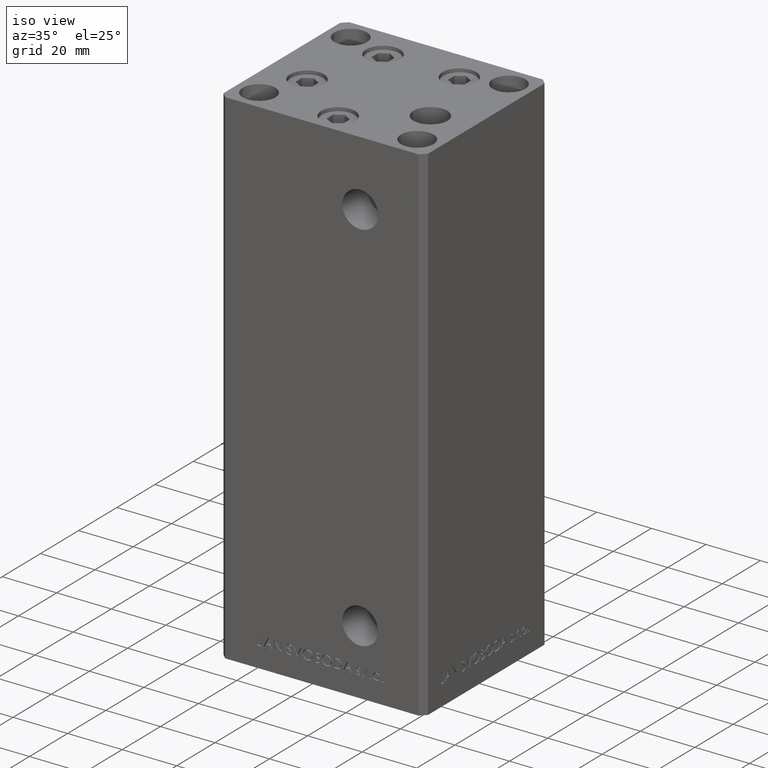
[diagram: clean part render]
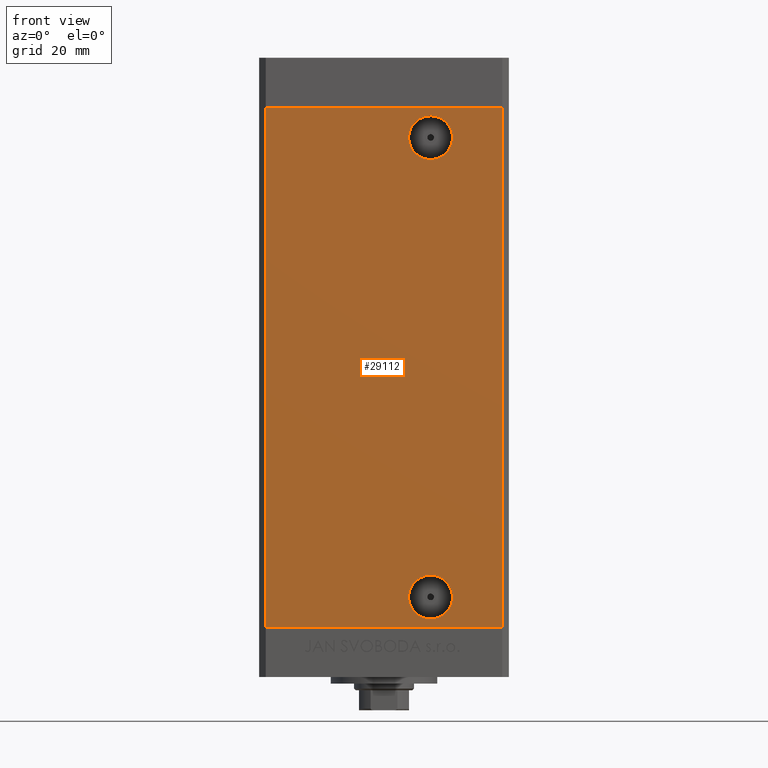
[diagram: tour spotlight — one face highlighted and labeled with its STEP entity id]
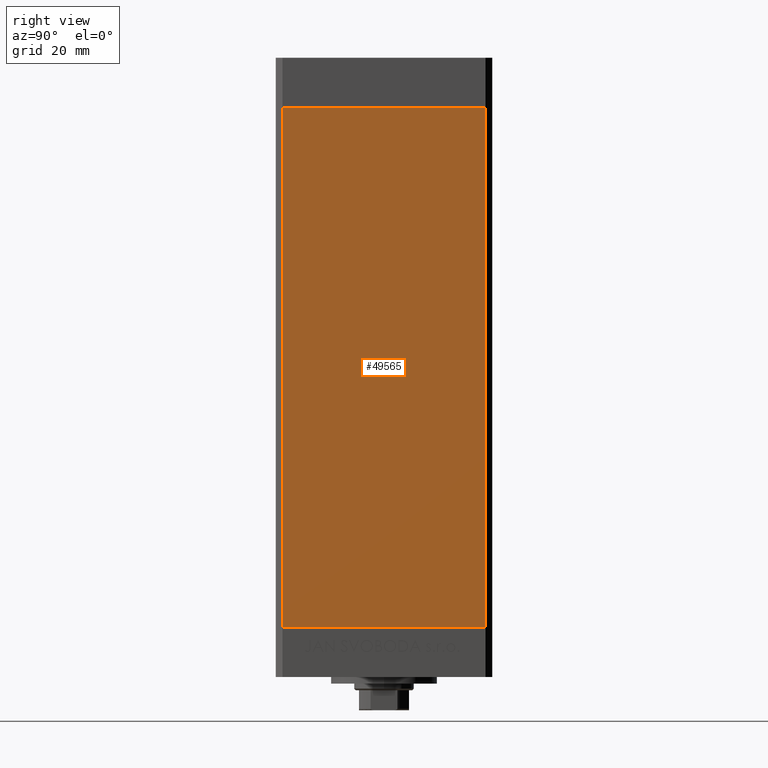
[diagram: tour spotlight — one face highlighted and labeled with its STEP entity id]
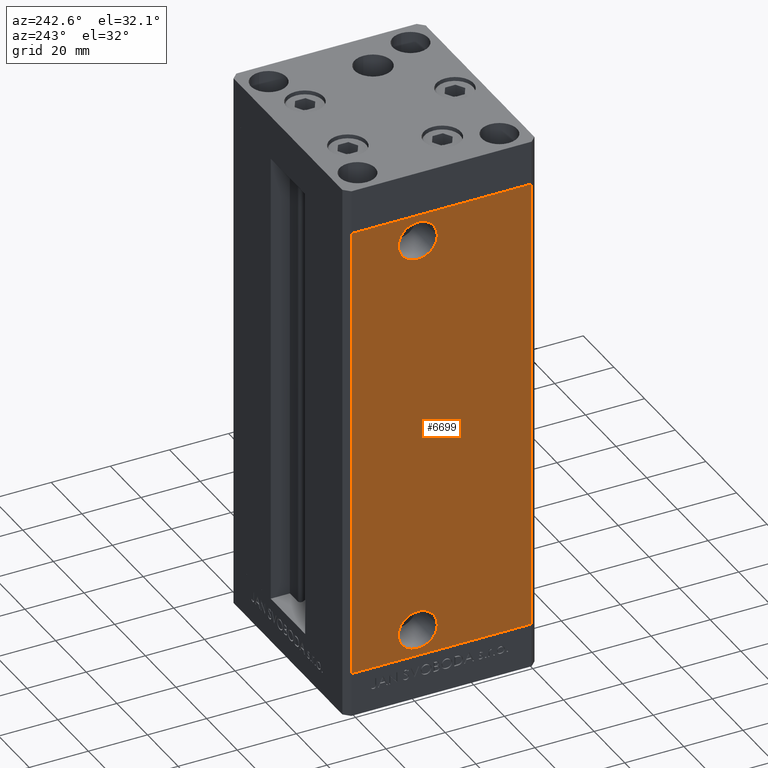
[diagram: tour spotlight — one face highlighted and labeled with its STEP entity id]
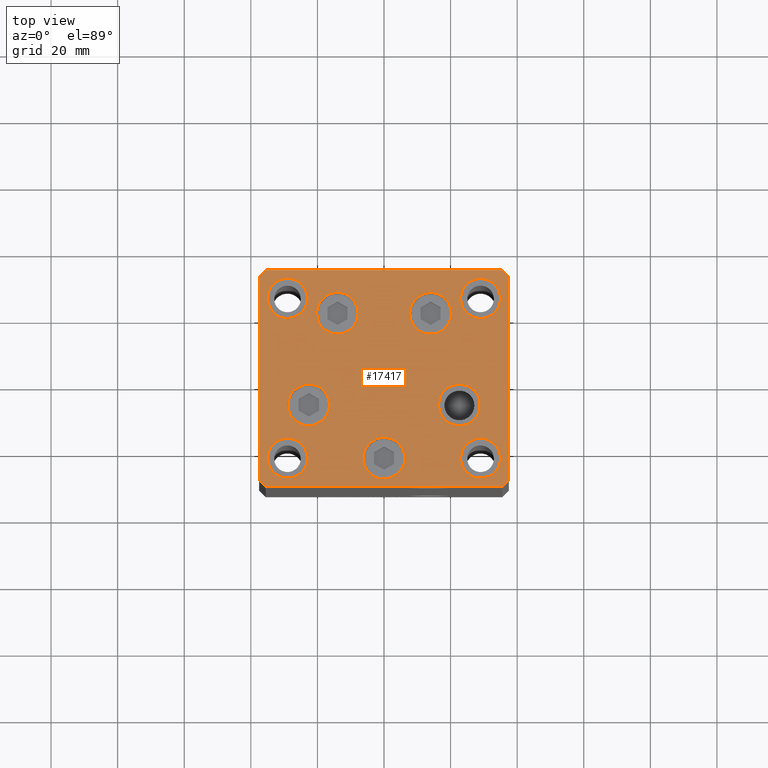
[diagram: tour spotlight — one face highlighted and labeled with its STEP entity id]
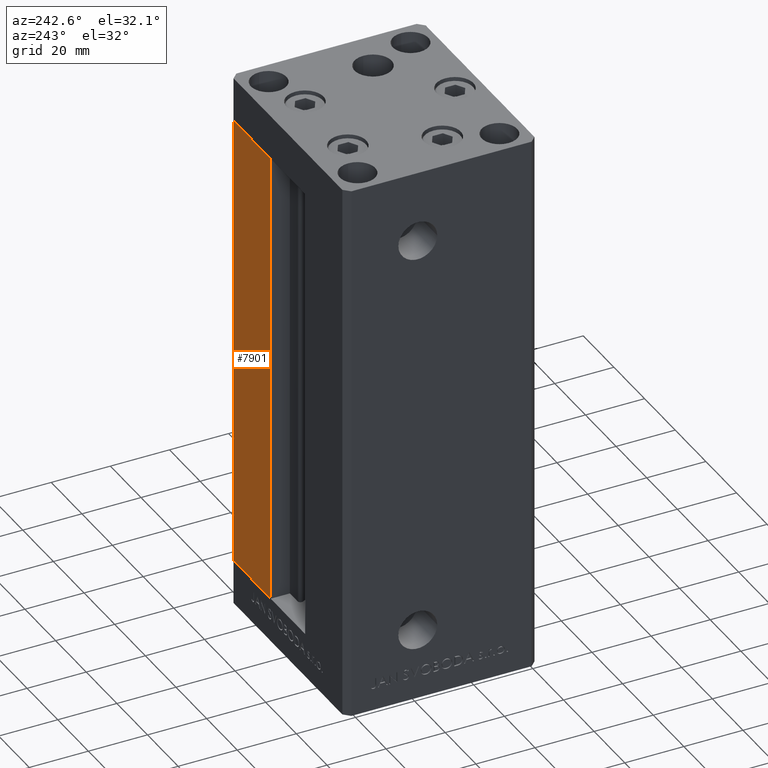
[diagram: tour spotlight — one face highlighted and labeled with its STEP entity id]
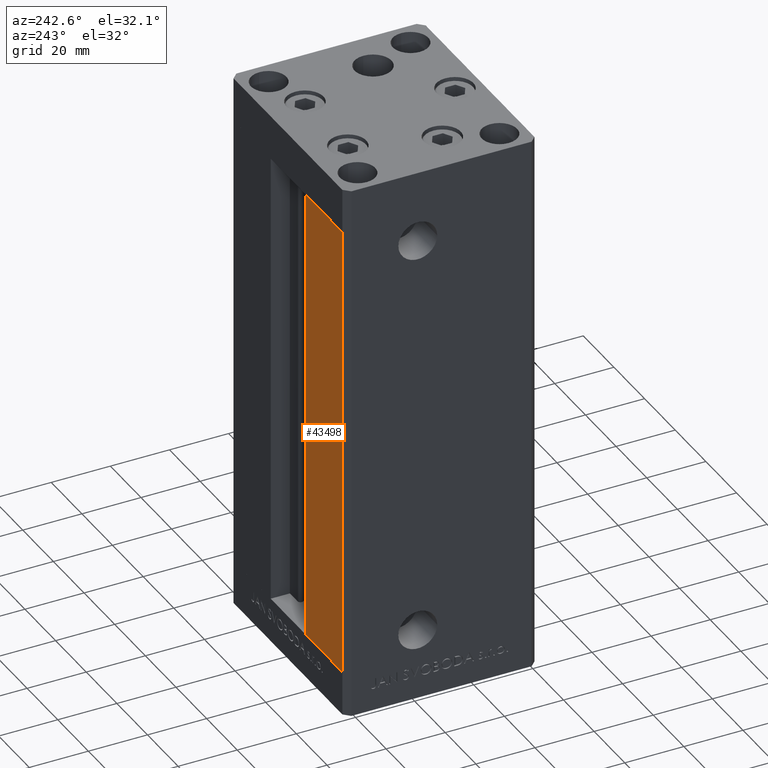
[diagram: tour spotlight — one face highlighted and labeled with its STEP entity id]
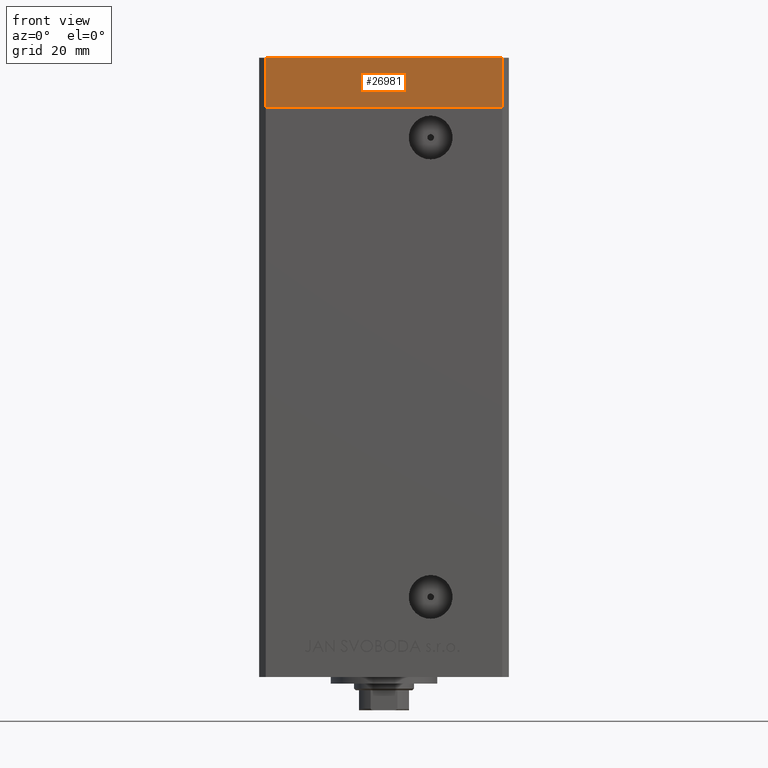
[diagram: tour spotlight — one face highlighted and labeled with its STEP entity id]
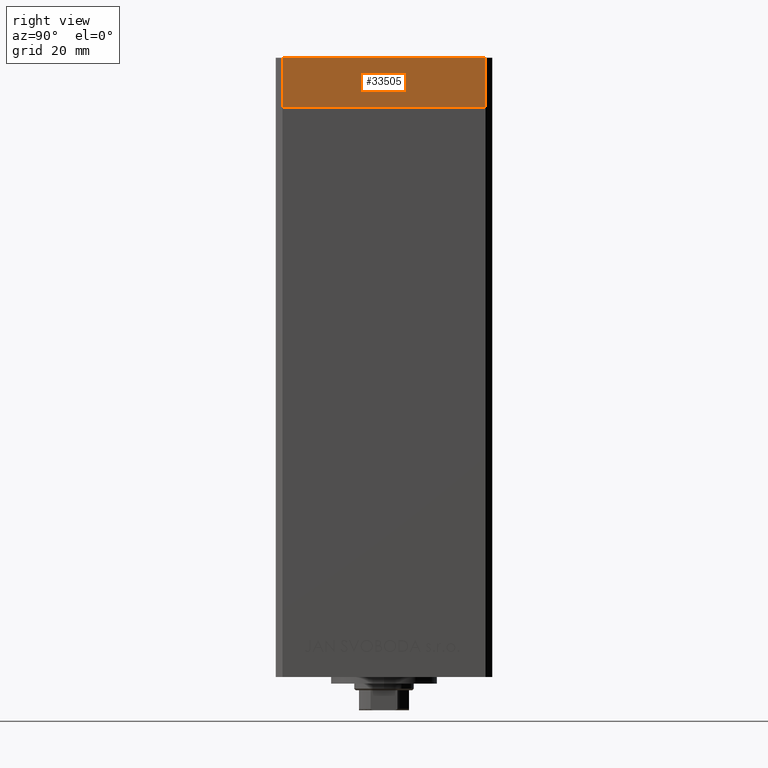
[diagram: tour spotlight — one face highlighted and labeled with its STEP entity id]
A machine part: a face-by-face anatomy tour. The part has 1179 B-rep faces; the first image is the clean iso view, then the 8 largest visible faces are spotlighted one at a time (largest first), each with its STEP entity span.

Face 1 — front view, entity #29112. In plain terms, the highlighted planar face has unit normal (0, 1, 0).
Definition (entity closure, byte-faithful):
#1363 = CARTESIAN_POINT ( 'NONE',  ( -35.49999999999999289, -32.50000000000000000, 156.0000000000000000 ) ) ;
#1692 = VERTEX_POINT ( 'NONE', #3323 ) ;
#1764 = ORIENTED_EDGE ( 'NONE', *, *, #32179, .T. ) ;
#3132 = AXIS2_PLACEMENT_3D ( 'NONE', #47998, #44477, #6054 ) ;
#3323 = CARTESIAN_POINT ( 'NONE',  ( 35.49999999999999289, -32.50000000000000000, 0.000000000000000000 ) ) ;
#4083 = VERTEX_POINT ( 'NONE', #4174 ) ;
#4174 = CARTESIAN_POINT ( 'NONE',  ( -35.49999999999999289, -32.50000000000000000, 0.000000000000000000 ) ) ;
#5790 = EDGE_LOOP ( 'NONE', ( #1764, #21231 ) ) ;
#6054 = DIRECTION ( 'NONE',  ( 0.000000000000000000, 0.000000000000000000, -1.000000000000000000 ) ) ;
#7296 = AXIS2_PLACEMENT_3D ( 'NONE', #38017, #31442, #38750 ) ;
#7434 = CARTESIAN_POINT ( 'NONE',  ( 13.99999999999999112, -32.50000000000000000, 9.000000000000007105 ) ) ;
#7734 = VERTEX_POINT ( 'NONE', #30160 ) ;
#8148 = LINE ( 'NONE', #32459, #39741 ) ;
#8378 = ORIENTED_EDGE ( 'NONE', *, *, #21423, .F. ) ;
#8633 = ORIENTED_EDGE ( 'NONE', *, *, #33091, .T. ) ;
#9075 = CIRCLE ( 'NONE', #32342, 6.580000000000002736 ) ;
#9367 = VERTEX_POINT ( 'NONE', #21494 ) ;
#9609 = VERTEX_POINT ( 'NONE', #38440 ) ;
#10592 = CARTESIAN_POINT ( 'NONE',  ( -35.49999999999999289, -32.50000000000000000, 156.0000000000000000 ) ) ;
#12092 = VECTOR ( 'NONE', #31878, 1000.000000000000000 ) ;
#12660 = CARTESIAN_POINT ( 'NONE',  ( -35.49999999999999289, -32.50000000000000000, 156.0000000000000000 ) ) ;
#12904 = DIRECTION ( 'NONE',  ( 0.000000000000000000, 0.000000000000000000, -1.000000000000000000 ) ) ;
#14226 = EDGE_CURVE ( 'NONE', #9609, #9367, #35725, .T. ) ;
#14891 = ORIENTED_EDGE ( 'NONE', *, *, #43106, .F. ) ;
#16426 = LINE ( 'NONE', #12660, #28634 ) ;
#16427 = DIRECTION ( 'NONE',  ( -0.000000000000000000, -0.000000000000000000, -1.000000000000000000 ) ) ;
#17146 = DIRECTION ( 'NONE',  ( -0.000000000000000000, 1.000000000000000000, -0.000000000000000000 ) ) ;
#18968 = VERTEX_POINT ( 'NONE', #42783 ) ;
#19418 = FACE_OUTER_BOUND ( 'NONE', #46021, .T. ) ;
#20807 = CIRCLE ( 'NONE', #25615, 6.579999999999998295 ) ;
#21231 = ORIENTED_EDGE ( 'NONE', *, *, #14226, .T. ) ;
#21293 = AXIS2_PLACEMENT_3D ( 'NONE', #33455, #17146, #40000 ) ;
#21423 = EDGE_CURVE ( 'NONE', #18968, #39096, #29568, .T. ) ;
#21494 = CARTESIAN_POINT ( 'NONE',  ( 13.99999999999997513, -32.50000000000000000, 140.4199999999999875 ) ) ;
#22691 = PLANE ( 'NONE',  #7296 ) ;
#22742 = DIRECTION ( 'NONE',  ( 0.000000000000000000, -1.000000000000000000, 0.000000000000000000 ) ) ;
#22887 = ORIENTED_EDGE ( 'NONE', *, *, #29465, .T. ) ;
#24371 = ORIENTED_EDGE ( 'NONE', *, *, #37477, .F. ) ;
#25615 = AXIS2_PLACEMENT_3D ( 'NONE', #7434, #22742, #38313 ) ;
#26462 = CARTESIAN_POINT ( 'NONE',  ( 13.99999999999999112, -32.50000000000000000, 15.58000000000000718 ) ) ;
#28634 = VECTOR ( 'NONE', #35741, 1000.000000000000000 ) ;
#29112 = ADVANCED_FACE ( 'NONE', ( #30475, #19418, #41539 ), #22691, .F. ) ;
#29465 = EDGE_CURVE ( 'NONE', #43966, #4083, #29664, .T. ) ;
#29568 = CIRCLE ( 'NONE', #3132, 6.579999999999998295 ) ;
#29664 = LINE ( 'NONE', #10592, #12092 ) ;
#30160 = CARTESIAN_POINT ( 'NONE',  ( 35.49999999999999289, -32.50000000000000000, 156.0000000000000000 ) ) ;
#30475 = FACE_BOUND ( 'NONE', #36291, .T. ) ;
#31442 = DIRECTION ( 'NONE',  ( 0.000000000000000000, 1.000000000000000000, 0.000000000000000000 ) ) ;
#31878 = DIRECTION ( 'NONE',  ( -0.000000000000000000, -0.000000000000000000, -1.000000000000000000 ) ) ;
#32179 = EDGE_CURVE ( 'NONE', #9367, #9609, #9075, .T. ) ;
#32342 = AXIS2_PLACEMENT_3D ( 'NONE', #35979, #39519, #12904 ) ;
#32459 = CARTESIAN_POINT ( 'NONE',  ( -35.49999999999999289, -32.50000000000000000, 0.000000000000000000 ) ) ;
#33091 = EDGE_CURVE ( 'NONE', #4083, #1692, #8148, .T. ) ;
#33455 = CARTESIAN_POINT ( 'NONE',  ( 13.99999999999997513, -32.50000000000000000, 147.0000000000000000 ) ) ;
#35725 = CIRCLE ( 'NONE', #21293, 6.580000000000002736 ) ;
#35741 = DIRECTION ( 'NONE',  ( 1.000000000000000000, 0.000000000000000000, 0.000000000000000000 ) ) ;
#35979 = CARTESIAN_POINT ( 'NONE',  ( 13.99999999999997513, -32.50000000000000000, 147.0000000000000000 ) ) ;
#36028 = VECTOR ( 'NONE', #16427, 1000.000000000000000 ) ;
#36291 = EDGE_LOOP ( 'NONE', ( #8378, #14891 ) ) ;
#37477 = EDGE_CURVE ( 'NONE', #43966, #7734, #16426, .T. ) ;
#38017 = CARTESIAN_POINT ( 'NONE',  ( -35.49999999999999289, -32.50000000000000000, 156.0000000000000000 ) ) ;
#38313 = DIRECTION ( 'NONE',  ( 0.000000000000000000, 0.000000000000000000, -1.000000000000000000 ) ) ;
#38440 = CARTESIAN_POINT ( 'NONE',  ( 13.99999999999997513, -32.50000000000000000, 153.5799999999999841 ) ) ;
#38750 = DIRECTION ( 'NONE',  ( 0.000000000000000000, -0.000000000000000000, 1.000000000000000000 ) ) ;
#39096 = VERTEX_POINT ( 'NONE', #26462 ) ;
#39291 = CARTESIAN_POINT ( 'NONE',  ( 35.49999999999999289, -32.50000000000000000, 156.0000000000000000 ) ) ;
#39519 = DIRECTION ( 'NONE',  ( -0.000000000000000000, 1.000000000000000000, -0.000000000000000000 ) ) ;
#39741 = VECTOR ( 'NONE', #40261, 1000.000000000000000 ) ;
#40000 = DIRECTION ( 'NONE',  ( 0.000000000000000000, 0.000000000000000000, -1.000000000000000000 ) ) ;
#40261 = DIRECTION ( 'NONE',  ( 1.000000000000000000, 0.000000000000000000, 0.000000000000000000 ) ) ;
#41539 = FACE_BOUND ( 'NONE', #5790, .T. ) ;
#42783 = CARTESIAN_POINT ( 'NONE',  ( 13.99999999999999112, -32.50000000000000000, 2.420000000000009699 ) ) ;
#43106 = EDGE_CURVE ( 'NONE', #39096, #18968, #20807, .T. ) ;
#43966 = VERTEX_POINT ( 'NONE', #1363 ) ;
#44477 = DIRECTION ( 'NONE',  ( 0.000000000000000000, -1.000000000000000000, 0.000000000000000000 ) ) ;
#44519 = ORIENTED_EDGE ( 'NONE', *, *, #46206, .F. ) ;
#46021 = EDGE_LOOP ( 'NONE', ( #8633, #44519, #24371, #22887 ) ) ;
#46206 = EDGE_CURVE ( 'NONE', #7734, #1692, #47316, .T. ) ;
#47316 = LINE ( 'NONE', #39291, #36028 ) ;
#47998 = CARTESIAN_POINT ( 'NONE',  ( 13.99999999999999112, -32.50000000000000000, 9.000000000000007105 ) ) ;

Face 2 — right view, entity #49565. In plain terms, the highlighted planar face has unit normal (1, -0, 0).
Definition (entity closure, byte-faithful):
#369 = DIRECTION ( 'NONE',  ( -0.000000000000000000, -0.000000000000000000, -1.000000000000000000 ) ) ;
#1147 = EDGE_CURVE ( 'NONE', #21725, #39515, #38875, .T. ) ;
#2412 = VERTEX_POINT ( 'NONE', #25973 ) ;
#3474 = FACE_OUTER_BOUND ( 'NONE', #24421, .T. ) ;
#3833 = CARTESIAN_POINT ( 'NONE',  ( 37.50000000000000711, 30.50000000000000000, 0.000000000000000000 ) ) ;
#4150 = LINE ( 'NONE', #41843, #18243 ) ;
#5727 = ORIENTED_EDGE ( 'NONE', *, *, #37378, .F. ) ;
#6495 = DIRECTION ( 'NONE',  ( 2.275047181608927644E-16, 1.000000000000000000, 0.000000000000000000 ) ) ;
#8450 = VECTOR ( 'NONE', #15391, 1000.000000000000000 ) ;
#10788 = ORIENTED_EDGE ( 'NONE', *, *, #34751, .T. ) ;
#11683 = VECTOR ( 'NONE', #19537, 1000.000000000000000 ) ;
#12555 = CARTESIAN_POINT ( 'NONE',  ( 37.49999999999999289, -30.50000000000000000, 156.0000000000000000 ) ) ;
#13709 = AXIS2_PLACEMENT_3D ( 'NONE', #18787, #14020, #6495 ) ;
#14020 = DIRECTION ( 'NONE',  ( 1.000000000000000000, -2.275047181608927644E-16, 0.000000000000000000 ) ) ;
#15391 = DIRECTION ( 'NONE',  ( -2.275047181608927644E-16, -1.000000000000000000, 0.000000000000000000 ) ) ;
#16585 = CARTESIAN_POINT ( 'NONE',  ( 37.49999999999999289, -30.50000000000000000, 0.000000000000000000 ) ) ;
#18243 = VECTOR ( 'NONE', #369, 1000.000000000000000 ) ;
#18787 = CARTESIAN_POINT ( 'NONE',  ( 37.50000000000000711, 30.50000000000000000, 156.0000000000000000 ) ) ;
#19537 = DIRECTION ( 'NONE',  ( -0.000000000000000000, -0.000000000000000000, -1.000000000000000000 ) ) ;
#19803 = ORIENTED_EDGE ( 'NONE', *, *, #33368, .F. ) ;
#21725 = VERTEX_POINT ( 'NONE', #12555 ) ;
#22147 = VECTOR ( 'NONE', #27537, 1000.000000000000000 ) ;
#23588 = CARTESIAN_POINT ( 'NONE',  ( 37.50000000000000711, 30.50000000000000000, 156.0000000000000000 ) ) ;
#24421 = EDGE_LOOP ( 'NONE', ( #19803, #5727, #10788, #33082 ) ) ;
#25973 = CARTESIAN_POINT ( 'NONE',  ( 37.50000000000000711, 30.50000000000000000, 0.000000000000000000 ) ) ;
#27310 = CARTESIAN_POINT ( 'NONE',  ( 37.49999999999999289, -30.50000000000000000, 156.0000000000000000 ) ) ;
#27537 = DIRECTION ( 'NONE',  ( -2.275047181608927644E-16, -1.000000000000000000, 0.000000000000000000 ) ) ;
#33082 = ORIENTED_EDGE ( 'NONE', *, *, #1147, .T. ) ;
#33368 = EDGE_CURVE ( 'NONE', #2412, #39515, #34455, .T. ) ;
#34455 = LINE ( 'NONE', #3833, #8450 ) ;
#34751 = EDGE_CURVE ( 'NONE', #46733, #21725, #35086, .T. ) ;
#35086 = LINE ( 'NONE', #46889, #22147 ) ;
#37378 = EDGE_CURVE ( 'NONE', #46733, #2412, #4150, .T. ) ;
#38875 = LINE ( 'NONE', #27310, #11683 ) ;
#39515 = VERTEX_POINT ( 'NONE', #16585 ) ;
#41843 = CARTESIAN_POINT ( 'NONE',  ( 37.50000000000000711, 30.50000000000000000, 156.0000000000000000 ) ) ;
#44921 = PLANE ( 'NONE',  #13709 ) ;
#46733 = VERTEX_POINT ( 'NONE', #23588 ) ;
#46889 = CARTESIAN_POINT ( 'NONE',  ( 37.50000000000000711, 30.50000000000000000, 156.0000000000000000 ) ) ;
#49565 = ADVANCED_FACE ( 'NONE', ( #3474 ), #44921, .T. ) ;

Face 3 — auxiliary view, entity #6699. In plain terms, the highlighted planar face has unit normal (1, 0, 0).
Definition (entity closure, byte-faithful):
#674 = EDGE_LOOP ( 'NONE', ( #39104, #1229 ) ) ;
#718 = AXIS2_PLACEMENT_3D ( 'NONE', #4823, #7857, #42520 ) ;
#1229 = ORIENTED_EDGE ( 'NONE', *, *, #18781, .F. ) ;
#4823 = CARTESIAN_POINT ( 'NONE',  ( -37.50000000000000000, 7.999999999999991118, 147.0000000000000000 ) ) ;
#5641 = VECTOR ( 'NONE', #47867, 1000.000000000000000 ) ;
#5998 = EDGE_CURVE ( 'NONE', #44408, #8205, #35311, .T. ) ;
#6222 = VERTEX_POINT ( 'NONE', #45584 ) ;
#6699 = ADVANCED_FACE ( 'NONE', ( #35875, #12543, #43674 ), #28086, .F. ) ;
#7783 = ORIENTED_EDGE ( 'NONE', *, *, #16824, .T. ) ;
#7857 = DIRECTION ( 'NONE',  ( -1.000000000000000000, -2.275047181608927644E-16, 0.000000000000000000 ) ) ;
#8205 = VERTEX_POINT ( 'NONE', #34046 ) ;
#8719 = EDGE_LOOP ( 'NONE', ( #26352, #11447 ) ) ;
#9044 = CARTESIAN_POINT ( 'NONE',  ( -37.50000000000000000, 7.999999999999991118, 147.0000000000000000 ) ) ;
#9287 = DIRECTION ( 'NONE',  ( 0.000000000000000000, -1.000000000000000000, 0.000000000000000000 ) ) ;
#9883 = ORIENTED_EDGE ( 'NONE', *, *, #45950, .F. ) ;
#10136 = EDGE_CURVE ( 'NONE', #6222, #24322, #16206, .T. ) ;
#11092 = AXIS2_PLACEMENT_3D ( 'NONE', #13180, #43816, #14178 ) ;
#11447 = ORIENTED_EDGE ( 'NONE', *, *, #21196, .F. ) ;
#12543 = FACE_BOUND ( 'NONE', #8719, .T. ) ;
#12652 = AXIS2_PLACEMENT_3D ( 'NONE', #9044, #12810, #9287 ) ;
#12714 = DIRECTION ( 'NONE',  ( -0.000000000000000000, -0.000000000000000000, -1.000000000000000000 ) ) ;
#12796 = CARTESIAN_POINT ( 'NONE',  ( -37.50000000000000000, 14.58000000000000718, 147.0000000000000000 ) ) ;
#12810 = DIRECTION ( 'NONE',  ( -1.000000000000000000, -2.275047181608927644E-16, 0.000000000000000000 ) ) ;
#12832 = DIRECTION ( 'NONE',  ( 2.275047181608927644E-16, -1.000000000000000000, 0.000000000000000000 ) ) ;
#13180 = CARTESIAN_POINT ( 'NONE',  ( -37.50000000000000000, 7.999999999999977796, 9.000000000000007105 ) ) ;
#13311 = VECTOR ( 'NONE', #31504, 1000.000000000000000 ) ;
#14178 = DIRECTION ( 'NONE',  ( 0.000000000000000000, -1.000000000000000000, 0.000000000000000000 ) ) ;
#14203 = VECTOR ( 'NONE', #12832, 1000.000000000000000 ) ;
#16206 = LINE ( 'NONE', #34777, #13311 ) ;
#16237 = CARTESIAN_POINT ( 'NONE',  ( -37.50000000000000711, 30.50000000000000000, 156.0000000000000000 ) ) ;
#16312 = DIRECTION ( 'NONE',  ( 1.000000000000000000, 2.275047181608927644E-16, -0.000000000000000000 ) ) ;
#16740 = CARTESIAN_POINT ( 'NONE',  ( -37.50000000000000711, 30.50000000000000000, 156.0000000000000000 ) ) ;
#16824 = EDGE_CURVE ( 'NONE', #8205, #24322, #31649, .T. ) ;
#17171 = VECTOR ( 'NONE', #12714, 1000.000000000000000 ) ;
#18204 = EDGE_CURVE ( 'NONE', #24185, #46800, #27873, .T. ) ;
#18781 = EDGE_CURVE ( 'NONE', #30791, #34158, #39942, .T. ) ;
#21129 = CARTESIAN_POINT ( 'NONE',  ( -37.50000000000000000, 7.999999999999977796, 9.000000000000007105 ) ) ;
#21196 = EDGE_CURVE ( 'NONE', #46800, #24185, #40003, .T. ) ;
#23256 = CARTESIAN_POINT ( 'NONE',  ( -37.50000000000000000, 14.57999999999998053, 9.000000000000007105 ) ) ;
#24070 = AXIS2_PLACEMENT_3D ( 'NONE', #21129, #32669, #27661 ) ;
#24185 = VERTEX_POINT ( 'NONE', #25416 ) ;
#24322 = VERTEX_POINT ( 'NONE', #46248 ) ;
#25416 = CARTESIAN_POINT ( 'NONE',  ( -37.50000000000000000, 1.419999999999975948, 147.0000000000000000 ) ) ;
#26352 = ORIENTED_EDGE ( 'NONE', *, *, #18204, .F. ) ;
#27661 = DIRECTION ( 'NONE',  ( 0.000000000000000000, -1.000000000000000000, 0.000000000000000000 ) ) ;
#27837 = CARTESIAN_POINT ( 'NONE',  ( -37.50000000000000711, 30.50000000000000000, 156.0000000000000000 ) ) ;
#27873 = CIRCLE ( 'NONE', #12652, 6.580000000000015170 ) ;
#28086 = PLANE ( 'NONE',  #45289 ) ;
#30500 = CIRCLE ( 'NONE', #24070, 6.580000000000002736 ) ;
#30791 = VERTEX_POINT ( 'NONE', #23256 ) ;
#31504 = DIRECTION ( 'NONE',  ( -0.000000000000000000, -0.000000000000000000, -1.000000000000000000 ) ) ;
#31649 = LINE ( 'NONE', #39207, #14203 ) ;
#32669 = DIRECTION ( 'NONE',  ( -1.000000000000000000, -2.275047181608927644E-16, 0.000000000000000000 ) ) ;
#34046 = CARTESIAN_POINT ( 'NONE',  ( -37.50000000000000711, 30.50000000000000000, 0.000000000000000000 ) ) ;
#34158 = VERTEX_POINT ( 'NONE', #35936 ) ;
#34777 = CARTESIAN_POINT ( 'NONE',  ( -37.49999999999999289, -30.50000000000000000, 156.0000000000000000 ) ) ;
#35182 = EDGE_LOOP ( 'NONE', ( #7783, #48919, #9883, #40083 ) ) ;
#35311 = LINE ( 'NONE', #16237, #17171 ) ;
#35875 = FACE_BOUND ( 'NONE', #674, .T. ) ;
#35936 = CARTESIAN_POINT ( 'NONE',  ( -37.50000000000000000, 1.419999999999975060, 9.000000000000007105 ) ) ;
#39104 = ORIENTED_EDGE ( 'NONE', *, *, #44249, .F. ) ;
#39207 = CARTESIAN_POINT ( 'NONE',  ( -37.50000000000000711, 30.50000000000000000, 0.000000000000000000 ) ) ;
#39942 = CIRCLE ( 'NONE', #11092, 6.580000000000002736 ) ;
#40003 = CIRCLE ( 'NONE', #718, 6.580000000000015170 ) ;
#40083 = ORIENTED_EDGE ( 'NONE', *, *, #5998, .T. ) ;
#42520 = DIRECTION ( 'NONE',  ( 0.000000000000000000, -1.000000000000000000, 0.000000000000000000 ) ) ;
#42718 = CARTESIAN_POINT ( 'NONE',  ( -37.50000000000000711, 30.50000000000000000, 156.0000000000000000 ) ) ;
#43434 = DIRECTION ( 'NONE',  ( -2.275047181608927644E-16, 1.000000000000000000, 0.000000000000000000 ) ) ;
#43674 = FACE_OUTER_BOUND ( 'NONE', #35182, .T. ) ;
#43816 = DIRECTION ( 'NONE',  ( -1.000000000000000000, -2.275047181608927644E-16, 0.000000000000000000 ) ) ;
#44249 = EDGE_CURVE ( 'NONE', #34158, #30791, #30500, .T. ) ;
#44408 = VERTEX_POINT ( 'NONE', #42718 ) ;
#45289 = AXIS2_PLACEMENT_3D ( 'NONE', #27837, #16312, #43434 ) ;
#45584 = CARTESIAN_POINT ( 'NONE',  ( -37.49999999999999289, -30.50000000000000000, 156.0000000000000000 ) ) ;
#45950 = EDGE_CURVE ( 'NONE', #44408, #6222, #46871, .T. ) ;
#46248 = CARTESIAN_POINT ( 'NONE',  ( -37.49999999999999289, -30.50000000000000000, 0.000000000000000000 ) ) ;
#46800 = VERTEX_POINT ( 'NONE', #12796 ) ;
#46871 = LINE ( 'NONE', #16740, #5641 ) ;
#47867 = DIRECTION ( 'NONE',  ( 2.275047181608927644E-16, -1.000000000000000000, 0.000000000000000000 ) ) ;
#48919 = ORIENTED_EDGE ( 'NONE', *, *, #10136, .F. ) ;

Face 4 — top view, entity #17417. In plain terms, the highlighted planar face has unit normal (0, 0, 1).
Definition (entity closure, byte-faithful):
#353 = EDGE_LOOP ( 'NONE', ( #47369, #39558 ) ) ;
#419 = ORIENTED_EDGE ( 'NONE', *, *, #45933, .T. ) ;
#425 = DIRECTION ( 'NONE',  ( -0.7071067811865482389, 0.7071067811865469066, 0.000000000000000000 ) ) ;
#568 = CARTESIAN_POINT ( 'NONE',  ( -35.50000000000002842, 32.49999999999999289, 0.000000000000000000 ) ) ;
#570 = VECTOR ( 'NONE', #6221, 1000.000000000000114 ) ;
#653 = ORIENTED_EDGE ( 'NONE', *, *, #33446, .T. ) ;
#660 = VERTEX_POINT ( 'NONE', #44881 ) ;
#697 = DIRECTION ( 'NONE',  ( 1.000000000000000000, 0.000000000000000000, 0.000000000000000000 ) ) ;
#821 = DIRECTION ( 'NONE',  ( 1.000000000000000000, 0.000000000000000000, 0.000000000000000000 ) ) ;
#943 = DIRECTION ( 'NONE',  ( 1.000000000000000000, 0.000000000000000000, 0.000000000000000000 ) ) ;
#957 = VERTEX_POINT ( 'NONE', #44562 ) ;
#1010 = DIRECTION ( 'NONE',  ( 0.000000000000000000, -0.000000000000000000, -1.000000000000000000 ) ) ;
#1108 = VECTOR ( 'NONE', #29779, 1000.000000000000000 ) ;
#1282 = DIRECTION ( 'NONE',  ( 1.000000000000000000, 0.000000000000000000, 0.000000000000000000 ) ) ;
#1436 = DIRECTION ( 'NONE',  ( 0.000000000000000000, -0.000000000000000000, -1.000000000000000000 ) ) ;
#2130 = CIRCLE ( 'NONE', #38219, 6.000000000000005329 ) ;
#2728 = DIRECTION ( 'NONE',  ( 0.000000000000000000, 0.000000000000000000, 1.000000000000000000 ) ) ;
#2922 = CARTESIAN_POINT ( 'NONE',  ( 22.62741699796951877, -8.000000000000000000, 0.000000000000000000 ) ) ;
#3029 = CARTESIAN_POINT ( 'NONE',  ( 2.939152317953647500E-15, -24.00000000000000000, 0.000000000000000000 ) ) ;
#3079 = VERTEX_POINT ( 'NONE', #34322 ) ;
#3138 = EDGE_CURVE ( 'NONE', #19074, #11631, #14037, .T. ) ;
#3317 = DIRECTION ( 'NONE',  ( 0.000000000000000000, 0.000000000000000000, 1.000000000000000000 ) ) ;
#3994 = CIRCLE ( 'NONE', #27193, 6.250000000000000000 ) ;
#4102 = LINE ( 'NONE', #42767, #13987 ) ;
#4112 = CARTESIAN_POINT ( 'NONE',  ( -22.62741699796951877, -8.000000000000005329, 0.000000000000000000 ) ) ;
#4166 = CARTESIAN_POINT ( 'NONE',  ( -28.87741699796952233, -8.000000000000005329, 0.000000000000000000 ) ) ;
#4460 = DIRECTION ( 'NONE',  ( 0.000000000000000000, 0.000000000000000000, 1.000000000000000000 ) ) ;
#4470 = DIRECTION ( 'NONE',  ( 4.550094363217855288E-16, -1.000000000000000000, 0.000000000000000000 ) ) ;
#4971 = DIRECTION ( 'NONE',  ( 0.000000000000000000, -0.000000000000000000, -1.000000000000000000 ) ) ;
#5162 = LINE ( 'NONE', #47111, #41180 ) ;
#6019 = EDGE_CURVE ( 'NONE', #22724, #30137, #9191, .T. ) ;
#6107 = CARTESIAN_POINT ( 'NONE',  ( 37.49999999999992184, 30.50000000000001066, 0.000000000000000000 ) ) ;
#6221 = DIRECTION ( 'NONE',  ( 0.7071067811865474617, -0.7071067811865474617, 0.000000000000000000 ) ) ;
#6365 = EDGE_CURVE ( 'NONE', #27146, #21411, #49378, .T. ) ;
#6668 = EDGE_LOOP ( 'NONE', ( #13159, #35862 ) ) ;
#6863 = AXIS2_PLACEMENT_3D ( 'NONE', #35341, #1436, #943 ) ;
#7009 = CARTESIAN_POINT ( 'NONE',  ( -37.50000000000001421, 30.49999999999998579, 0.000000000000000000 ) ) ;
#7617 = EDGE_CURVE ( 'NONE', #19521, #27146, #4102, .T. ) ;
#7861 = DIRECTION ( 'NONE',  ( 1.000000000000000000, 9.773090005503140331E-17, 0.000000000000000000 ) ) ;
#7929 = CARTESIAN_POINT ( 'NONE',  ( 29.00000000000001066, -23.99999999999999289, 0.000000000000000000 ) ) ;
#8551 = EDGE_CURVE ( 'NONE', #10192, #24189, #39694, .T. ) ;
#8661 = PLANE ( 'NONE',  #12586 ) ;
#8741 = CARTESIAN_POINT ( 'NONE',  ( 13.99106857963322348, 19.50000000000000000, 0.000000000000000000 ) ) ;
#8750 = AXIS2_PLACEMENT_3D ( 'NONE', #2922, #42769, #23169 ) ;
#8915 = DIRECTION ( 'NONE',  ( 1.000000000000000000, 0.000000000000000000, 0.000000000000000000 ) ) ;
#8991 = DIRECTION ( 'NONE',  ( 1.000000000000000000, 0.000000000000000000, 0.000000000000000000 ) ) ;
#9181 = ORIENTED_EDGE ( 'NONE', *, *, #6019, .T. ) ;
#9191 = LINE ( 'NONE', #47608, #26788 ) ;
#9396 = FACE_BOUND ( 'NONE', #22973, .T. ) ;
#9598 = CIRCLE ( 'NONE', #14418, 5.999999999999998224 ) ;
#9884 = EDGE_CURVE ( 'NONE', #24189, #10192, #37333, .T. ) ;
#9911 = CARTESIAN_POINT ( 'NONE',  ( -23.00000000000001421, 24.00000000000000711, 0.000000000000000000 ) ) ;
#9913 = VERTEX_POINT ( 'NONE', #24281 ) ;
#10034 = EDGE_CURVE ( 'NONE', #15985, #11175, #24505, .T. ) ;
#10192 = VERTEX_POINT ( 'NONE', #4166 ) ;
#10599 = CARTESIAN_POINT ( 'NONE',  ( -29.00000000000001066, 24.00000000000000711, 0.000000000000000000 ) ) ;
#10646 = EDGE_CURVE ( 'NONE', #11175, #15985, #28517, .T. ) ;
#10982 = ORIENTED_EDGE ( 'NONE', *, *, #22961, .T. ) ;
#11175 = VERTEX_POINT ( 'NONE', #9911 ) ;
#11631 = VERTEX_POINT ( 'NONE', #45222 ) ;
#12459 = DIRECTION ( 'NONE',  ( 0.000000000000000000, -0.000000000000000000, -1.000000000000000000 ) ) ;
#12473 = ORIENTED_EDGE ( 'NONE', *, *, #41238, .T. ) ;
#12586 = AXIS2_PLACEMENT_3D ( 'NONE', #20950, #43318, #35511 ) ;
#12674 = FACE_BOUND ( 'NONE', #13879, .T. ) ;
#12710 = DIRECTION ( 'NONE',  ( -1.478780668045802821E-15, 1.000000000000000000, 0.000000000000000000 ) ) ;
#12994 = DIRECTION ( 'NONE',  ( 0.000000000000000000, 0.000000000000000000, 1.000000000000000000 ) ) ;
#13159 = ORIENTED_EDGE ( 'NONE', *, *, #21260, .F. ) ;
#13234 = CARTESIAN_POINT ( 'NONE',  ( -29.00000000000001066, 24.00000000000000711, 0.000000000000000000 ) ) ;
#13740 = DIRECTION ( 'NONE',  ( 0.000000000000000000, 0.000000000000000000, 1.000000000000000000 ) ) ;
#13879 = EDGE_LOOP ( 'NONE', ( #17953, #12473 ) ) ;
#13987 = VECTOR ( 'NONE', #7861, 1000.000000000000000 ) ;
#14028 = EDGE_LOOP ( 'NONE', ( #32264, #33337 ) ) ;
#14037 = CIRCLE ( 'NONE', #42129, 6.250000000000000000 ) ;
#14418 = AXIS2_PLACEMENT_3D ( 'NONE', #20278, #4460, #697 ) ;
#14460 = EDGE_CURVE ( 'NONE', #30137, #47932, #38262, .T. ) ;
#15686 = ORIENTED_EDGE ( 'NONE', *, *, #26364, .T. ) ;
#15985 = VERTEX_POINT ( 'NONE', #29105 ) ;
#16332 = DIRECTION ( 'NONE',  ( 1.000000000000000000, 0.000000000000000000, 0.000000000000000000 ) ) ;
#16662 = CIRCLE ( 'NONE', #25467, 6.000000000000005329 ) ;
#16868 = CIRCLE ( 'NONE', #25721, 6.250000000000000000 ) ;
#17073 = CARTESIAN_POINT ( 'NONE',  ( 35.49999999999992184, 32.50000000000000711, 0.000000000000000000 ) ) ;
#17286 = VERTEX_POINT ( 'NONE', #47172 ) ;
#17340 = EDGE_CURVE ( 'NONE', #48260, #19521, #29053, .T. ) ;
#17417 = ADVANCED_FACE ( 'NONE', ( #12674, #19961, #47816, #47327, #9396, #28221, #24953, #27967, #20209, #24214 ), #8661, .T. ) ;
#17527 = EDGE_CURVE ( 'NONE', #48617, #957, #29452, .T. ) ;
#17953 = ORIENTED_EDGE ( 'NONE', *, *, #22654, .T. ) ;
#18022 = CARTESIAN_POINT ( 'NONE',  ( -37.49999999999998579, -30.50000000000001421, 0.000000000000000000 ) ) ;
#18353 = ORIENTED_EDGE ( 'NONE', *, *, #45822, .T. ) ;
#19062 = CARTESIAN_POINT ( 'NONE',  ( -37.50000000000001421, 30.49999999999998579, 0.000000000000000000 ) ) ;
#19074 = VERTEX_POINT ( 'NONE', #24910 ) ;
#19280 = DIRECTION ( 'NONE',  ( 1.000000000000000000, 0.000000000000000000, 0.000000000000000000 ) ) ;
#19521 = VERTEX_POINT ( 'NONE', #24239 ) ;
#19961 = FACE_BOUND ( 'NONE', #353, .T. ) ;
#19962 = CIRCLE ( 'NONE', #32783, 6.000000000000005329 ) ;
#20100 = CARTESIAN_POINT ( 'NONE',  ( -13.99106857963322703, 19.49999999999999645, 0.000000000000000000 ) ) ;
#20209 = FACE_BOUND ( 'NONE', #6668, .T. ) ;
#20278 = CARTESIAN_POINT ( 'NONE',  ( -29.00000000000001066, -23.99999999999999289, 0.000000000000000000 ) ) ;
#20950 = CARTESIAN_POINT ( 'NONE',  ( 0.000000000000000000, 0.000000000000000000, 0.000000000000000000 ) ) ;
#21260 = EDGE_CURVE ( 'NONE', #3079, #32847, #19962, .T. ) ;
#21411 = VERTEX_POINT ( 'NONE', #29138 ) ;
#21558 = AXIS2_PLACEMENT_3D ( 'NONE', #8741, #4971, #23799 ) ;
#21726 = ORIENTED_EDGE ( 'NONE', *, *, #10646, .F. ) ;
#22354 = CIRCLE ( 'NONE', #21558, 6.250000000000000000 ) ;
#22654 = EDGE_CURVE ( 'NONE', #41679, #44235, #3994, .T. ) ;
#22724 = VERTEX_POINT ( 'NONE', #17073 ) ;
#22805 = VERTEX_POINT ( 'NONE', #33879 ) ;
#22961 = EDGE_CURVE ( 'NONE', #47932, #48260, #34369, .T. ) ;
#22973 = EDGE_LOOP ( 'NONE', ( #25560, #40449 ) ) ;
#23169 = DIRECTION ( 'NONE',  ( 1.000000000000000000, 0.000000000000000000, 0.000000000000000000 ) ) ;
#23799 = DIRECTION ( 'NONE',  ( 1.000000000000000000, 0.000000000000000000, 0.000000000000000000 ) ) ;
#23922 = CIRCLE ( 'NONE', #33534, 5.999999999999998224 ) ;
#24189 = VERTEX_POINT ( 'NONE', #36977 ) ;
#24214 = FACE_OUTER_BOUND ( 'NONE', #31984, .T. ) ;
#24239 = CARTESIAN_POINT ( 'NONE',  ( -35.49999999999998579, -32.50000000000001421, 0.000000000000000000 ) ) ;
#24281 = CARTESIAN_POINT ( 'NONE',  ( 28.87741699796952233, -8.000000000000000000, 0.000000000000000000 ) ) ;
#24434 = AXIS2_PLACEMENT_3D ( 'NONE', #4112, #34967, #821 ) ;
#24505 = CIRCLE ( 'NONE', #34939, 5.999999999999998224 ) ;
#24735 = CIRCLE ( 'NONE', #31950, 6.250000000000000000 ) ;
#24910 = CARTESIAN_POINT ( 'NONE',  ( 20.24106857963322526, 19.50000000000000000, 0.000000000000000000 ) ) ;
#24953 = FACE_BOUND ( 'NONE', #30018, .T. ) ;
#25285 = CIRCLE ( 'NONE', #34115, 6.250000000000001776 ) ;
#25467 = AXIS2_PLACEMENT_3D ( 'NONE', #32068, #12994, #28286 ) ;
#25560 = ORIENTED_EDGE ( 'NONE', *, *, #8551, .T. ) ;
#25573 = ORIENTED_EDGE ( 'NONE', *, *, #45714, .T. ) ;
#25721 = AXIS2_PLACEMENT_3D ( 'NONE', #3029, #46145, #19280 ) ;
#26185 = CARTESIAN_POINT ( 'NONE',  ( -37.49999999999998579, -30.50000000000001421, 0.000000000000000000 ) ) ;
#26364 = EDGE_CURVE ( 'NONE', #47987, #9913, #45677, .T. ) ;
#26653 = CARTESIAN_POINT ( 'NONE',  ( -35.50000000000002842, 32.49999999999999289, 0.000000000000000000 ) ) ;
#26788 = VECTOR ( 'NONE', #39091, 1000.000000000000000 ) ;
#27095 = EDGE_CURVE ( 'NONE', #22805, #47731, #9598, .T. ) ;
#27146 = VERTEX_POINT ( 'NONE', #47891 ) ;
#27150 = EDGE_LOOP ( 'NONE', ( #15686, #653 ) ) ;
#27193 = AXIS2_PLACEMENT_3D ( 'NONE', #20100, #1010, #16332 ) ;
#27600 = CARTESIAN_POINT ( 'NONE',  ( -35.00000000000000711, -23.99999999999999289, 0.000000000000000000 ) ) ;
#27967 = FACE_BOUND ( 'NONE', #44957, .T. ) ;
#28221 = FACE_BOUND ( 'NONE', #14028, .T. ) ;
#28286 = DIRECTION ( 'NONE',  ( 1.000000000000000000, 0.000000000000000000, 0.000000000000000000 ) ) ;
#28400 = CARTESIAN_POINT ( 'NONE',  ( -7.741068579633227031, 19.49999999999999645, 0.000000000000000000 ) ) ;
#28517 = CIRCLE ( 'NONE', #30156, 5.999999999999998224 ) ;
#29053 = LINE ( 'NONE', #18022, #570 ) ;
#29081 = CARTESIAN_POINT ( 'NONE',  ( 29.00000000000001066, -23.99999999999999289, 0.000000000000000000 ) ) ;
#29105 = CARTESIAN_POINT ( 'NONE',  ( -35.00000000000000711, 24.00000000000000711, 0.000000000000000000 ) ) ;
#29138 = CARTESIAN_POINT ( 'NONE',  ( 37.50000000000001421, -30.50000000000000711, 0.000000000000000000 ) ) ;
#29277 = DIRECTION ( 'NONE',  ( 1.000000000000000000, 0.000000000000000000, 0.000000000000000000 ) ) ;
#29452 = CIRCLE ( 'NONE', #39113, 6.000000000000005329 ) ;
#29779 = DIRECTION ( 'NONE',  ( 0.7071067811865487940, 0.7071067811865463515, 0.000000000000000000 ) ) ;
#30018 = EDGE_LOOP ( 'NONE', ( #49180, #39819 ) ) ;
#30137 = VERTEX_POINT ( 'NONE', #26653 ) ;
#30156 = AXIS2_PLACEMENT_3D ( 'NONE', #10599, #3317, #37207 ) ;
#31423 = DIRECTION ( 'NONE',  ( 1.000000000000000000, 0.000000000000000000, 0.000000000000000000 ) ) ;
#31783 = CARTESIAN_POINT ( 'NONE',  ( 23.00000000000001066, 24.00000000000000711, 0.000000000000000000 ) ) ;
#31791 = CARTESIAN_POINT ( 'NONE',  ( 23.00000000000001066, -23.99999999999999289, 0.000000000000000000 ) ) ;
#31921 = EDGE_CURVE ( 'NONE', #21411, #45531, #5162, .T. ) ;
#31950 = AXIS2_PLACEMENT_3D ( 'NONE', #47154, #32326, #8991 ) ;
#31984 = EDGE_LOOP ( 'NONE', ( #48934, #47926, #33666, #38363, #419, #9181, #32122, #10982 ) ) ;
#32068 = CARTESIAN_POINT ( 'NONE',  ( 29.00000000000001066, 24.00000000000000711, 0.000000000000000000 ) ) ;
#32122 = ORIENTED_EDGE ( 'NONE', *, *, #14460, .T. ) ;
#32264 = ORIENTED_EDGE ( 'NONE', *, *, #35130, .F. ) ;
#32326 = DIRECTION ( 'NONE',  ( 0.000000000000000000, -0.000000000000000000, -1.000000000000000000 ) ) ;
#32783 = AXIS2_PLACEMENT_3D ( 'NONE', #39479, #38741, #42761 ) ;
#32847 = VERTEX_POINT ( 'NONE', #31783 ) ;
#32915 = AXIS2_PLACEMENT_3D ( 'NONE', #39223, #46750, #31423 ) ;
#33337 = ORIENTED_EDGE ( 'NONE', *, *, #17527, .F. ) ;
#33446 = EDGE_CURVE ( 'NONE', #9913, #47987, #25285, .T. ) ;
#33534 = AXIS2_PLACEMENT_3D ( 'NONE', #48144, #13740, #43140 ) ;
#33666 = ORIENTED_EDGE ( 'NONE', *, *, #6365, .T. ) ;
#33720 = VECTOR ( 'NONE', #425, 999.9999999999998863 ) ;
#33879 = CARTESIAN_POINT ( 'NONE',  ( -23.00000000000001421, -23.99999999999999289, 0.000000000000000000 ) ) ;
#34115 = AXIS2_PLACEMENT_3D ( 'NONE', #40203, #39705, #1282 ) ;
#34322 = CARTESIAN_POINT ( 'NONE',  ( 35.00000000000001421, 24.00000000000000711, 0.000000000000000000 ) ) ;
#34369 = LINE ( 'NONE', #19062, #41677 ) ;
#34819 = CARTESIAN_POINT ( 'NONE',  ( 37.49999999999992184, 30.50000000000001066, 0.000000000000000000 ) ) ;
#34939 = AXIS2_PLACEMENT_3D ( 'NONE', #13234, #47885, #29277 ) ;
#34967 = DIRECTION ( 'NONE',  ( 0.000000000000000000, -0.000000000000000000, -1.000000000000000000 ) ) ;
#35130 = EDGE_CURVE ( 'NONE', #957, #48617, #2130, .T. ) ;
#35307 = CARTESIAN_POINT ( 'NONE',  ( 13.99106857963322348, 19.50000000000000000, 0.000000000000000000 ) ) ;
#35341 = CARTESIAN_POINT ( 'NONE',  ( -22.62741699796951877, -8.000000000000005329, 0.000000000000000000 ) ) ;
#35511 = DIRECTION ( 'NONE',  ( 1.000000000000000000, 0.000000000000000000, 0.000000000000000000 ) ) ;
#35862 = ORIENTED_EDGE ( 'NONE', *, *, #38777, .F. ) ;
#36977 = CARTESIAN_POINT ( 'NONE',  ( -16.37741699796951877, -8.000000000000005329, 0.000000000000000000 ) ) ;
#37207 = DIRECTION ( 'NONE',  ( 1.000000000000000000, 0.000000000000000000, 0.000000000000000000 ) ) ;
#37333 = CIRCLE ( 'NONE', #6863, 6.250000000000001776 ) ;
#37391 = DIRECTION ( 'NONE',  ( 1.000000000000000000, 0.000000000000000000, 0.000000000000000000 ) ) ;
#38219 = AXIS2_PLACEMENT_3D ( 'NONE', #7929, #38569, #8915 ) ;
#38262 = LINE ( 'NONE', #568, #42210 ) ;
#38363 = ORIENTED_EDGE ( 'NONE', *, *, #31921, .T. ) ;
#38508 = DIRECTION ( 'NONE',  ( -0.7071067811865426878, -0.7071067811865524577, 0.000000000000000000 ) ) ;
#38569 = DIRECTION ( 'NONE',  ( 0.000000000000000000, 0.000000000000000000, 1.000000000000000000 ) ) ;
#38741 = DIRECTION ( 'NONE',  ( 0.000000000000000000, 0.000000000000000000, 1.000000000000000000 ) ) ;
#38777 = EDGE_CURVE ( 'NONE', #32847, #3079, #16662, .T. ) ;
#39091 = DIRECTION ( 'NONE',  ( -1.000000000000000000, -1.954618001100629052E-16, 0.000000000000000000 ) ) ;
#39113 = AXIS2_PLACEMENT_3D ( 'NONE', #29081, #2728, #37391 ) ;
#39223 = CARTESIAN_POINT ( 'NONE',  ( 2.939152317953647500E-15, -24.00000000000000000, 0.000000000000000000 ) ) ;
#39479 = CARTESIAN_POINT ( 'NONE',  ( 29.00000000000001066, 24.00000000000000711, 0.000000000000000000 ) ) ;
#39558 = ORIENTED_EDGE ( 'NONE', *, *, #3138, .T. ) ;
#39694 = CIRCLE ( 'NONE', #24434, 6.250000000000001776 ) ;
#39705 = DIRECTION ( 'NONE',  ( 0.000000000000000000, -0.000000000000000000, -1.000000000000000000 ) ) ;
#39819 = ORIENTED_EDGE ( 'NONE', *, *, #40397, .F. ) ;
#40203 = CARTESIAN_POINT ( 'NONE',  ( 22.62741699796951877, -8.000000000000000000, 0.000000000000000000 ) ) ;
#40321 = CARTESIAN_POINT ( 'NONE',  ( 16.37741699796951877, -8.000000000000000000, 0.000000000000000000 ) ) ;
#40397 = EDGE_CURVE ( 'NONE', #47731, #22805, #23922, .T. ) ;
#40449 = ORIENTED_EDGE ( 'NONE', *, *, #9884, .T. ) ;
#40936 = EDGE_LOOP ( 'NONE', ( #25573, #18353 ) ) ;
#41159 = EDGE_CURVE ( 'NONE', #11631, #19074, #22354, .T. ) ;
#41180 = VECTOR ( 'NONE', #12710, 1000.000000000000000 ) ;
#41238 = EDGE_CURVE ( 'NONE', #44235, #41679, #24735, .T. ) ;
#41559 = CARTESIAN_POINT ( 'NONE',  ( -20.24106857963322881, 19.49999999999999645, 0.000000000000000000 ) ) ;
#41677 = VECTOR ( 'NONE', #4470, 1000.000000000000000 ) ;
#41679 = VERTEX_POINT ( 'NONE', #41559 ) ;
#42129 = AXIS2_PLACEMENT_3D ( 'NONE', #35307, #12459, #46856 ) ;
#42210 = VECTOR ( 'NONE', #38508, 1000.000000000000000 ) ;
#42389 = LINE ( 'NONE', #34819, #33720 ) ;
#42558 = CIRCLE ( 'NONE', #32915, 6.250000000000000000 ) ;
#42761 = DIRECTION ( 'NONE',  ( 1.000000000000000000, 0.000000000000000000, 0.000000000000000000 ) ) ;
#42767 = CARTESIAN_POINT ( 'NONE',  ( -35.49999999999998579, -32.50000000000001421, 0.000000000000000000 ) ) ;
#42769 = DIRECTION ( 'NONE',  ( 0.000000000000000000, -0.000000000000000000, -1.000000000000000000 ) ) ;
#43140 = DIRECTION ( 'NONE',  ( 1.000000000000000000, 0.000000000000000000, 0.000000000000000000 ) ) ;
#43318 = DIRECTION ( 'NONE',  ( -0.000000000000000000, 0.000000000000000000, 1.000000000000000000 ) ) ;
#44235 = VERTEX_POINT ( 'NONE', #28400 ) ;
#44562 = CARTESIAN_POINT ( 'NONE',  ( 35.00000000000001421, -23.99999999999999289, 0.000000000000000000 ) ) ;
#44881 = CARTESIAN_POINT ( 'NONE',  ( -6.249999999999997335, -24.00000000000000000, 0.000000000000000000 ) ) ;
#44957 = EDGE_LOOP ( 'NONE', ( #21726, #45729 ) ) ;
#45222 = CARTESIAN_POINT ( 'NONE',  ( 7.741068579633223479, 19.50000000000000000, 0.000000000000000000 ) ) ;
#45531 = VERTEX_POINT ( 'NONE', #6107 ) ;
#45598 = CARTESIAN_POINT ( 'NONE',  ( 35.50000000000000711, -32.50000000000000711, 0.000000000000000000 ) ) ;
#45677 = CIRCLE ( 'NONE', #8750, 6.250000000000001776 ) ;
#45714 = EDGE_CURVE ( 'NONE', #660, #17286, #42558, .T. ) ;
#45729 = ORIENTED_EDGE ( 'NONE', *, *, #10034, .F. ) ;
#45822 = EDGE_CURVE ( 'NONE', #17286, #660, #16868, .T. ) ;
#45933 = EDGE_CURVE ( 'NONE', #45531, #22724, #42389, .T. ) ;
#46145 = DIRECTION ( 'NONE',  ( 0.000000000000000000, -0.000000000000000000, -1.000000000000000000 ) ) ;
#46750 = DIRECTION ( 'NONE',  ( 0.000000000000000000, -0.000000000000000000, -1.000000000000000000 ) ) ;
#46856 = DIRECTION ( 'NONE',  ( 1.000000000000000000, 0.000000000000000000, 0.000000000000000000 ) ) ;
#47111 = CARTESIAN_POINT ( 'NONE',  ( 37.50000000000001421, -30.50000000000000711, 0.000000000000000000 ) ) ;
#47154 = CARTESIAN_POINT ( 'NONE',  ( -13.99106857963322703, 19.49999999999999645, 0.000000000000000000 ) ) ;
#47172 = CARTESIAN_POINT ( 'NONE',  ( 6.250000000000002665, -24.00000000000000000, 0.000000000000000000 ) ) ;
#47327 = FACE_BOUND ( 'NONE', #40936, .T. ) ;
#47369 = ORIENTED_EDGE ( 'NONE', *, *, #41159, .T. ) ;
#47608 = CARTESIAN_POINT ( 'NONE',  ( 35.49999999999992184, 32.50000000000000711, 0.000000000000000000 ) ) ;
#47731 = VERTEX_POINT ( 'NONE', #27600 ) ;
#47816 = FACE_BOUND ( 'NONE', #27150, .T. ) ;
#47885 = DIRECTION ( 'NONE',  ( 0.000000000000000000, 0.000000000000000000, 1.000000000000000000 ) ) ;
#47891 = CARTESIAN_POINT ( 'NONE',  ( 35.50000000000000711, -32.50000000000000711, 0.000000000000000000 ) ) ;
#47926 = ORIENTED_EDGE ( 'NONE', *, *, #7617, .T. ) ;
#47932 = VERTEX_POINT ( 'NONE', #7009 ) ;
#47987 = VERTEX_POINT ( 'NONE', #40321 ) ;
#48144 = CARTESIAN_POINT ( 'NONE',  ( -29.00000000000001066, -23.99999999999999289, 0.000000000000000000 ) ) ;
#48260 = VERTEX_POINT ( 'NONE', #26185 ) ;
#48617 = VERTEX_POINT ( 'NONE', #31791 ) ;
#48934 = ORIENTED_EDGE ( 'NONE', *, *, #17340, .T. ) ;
#49180 = ORIENTED_EDGE ( 'NONE', *, *, #27095, .F. ) ;
#49378 = LINE ( 'NONE', #45598, #1108 ) ;

Face 5 — auxiliary view, entity #7901. In plain terms, the highlighted planar face has unit normal (0, -1, 0).
Definition (entity closure, byte-faithful):
#1065 = EDGE_CURVE ( 'NONE', #39806, #31929, #28143, .T. ) ;
#1437 = FACE_OUTER_BOUND ( 'NONE', #46922, .T. ) ;
#2276 = VECTOR ( 'NONE', #40744, 1000.000000000000000 ) ;
#3924 = CARTESIAN_POINT ( 'NONE',  ( 35.50000000000000000, 32.49999999999999289, 0.000000000000000000 ) ) ;
#4196 = LINE ( 'NONE', #7966, #43756 ) ;
#7763 = ORIENTED_EDGE ( 'NONE', *, *, #32836, .T. ) ;
#7901 = ADVANCED_FACE ( 'NONE', ( #1437 ), #12257, .F. ) ;
#7966 = CARTESIAN_POINT ( 'NONE',  ( 35.50000000000000000, 32.49999999999999289, 156.0000000000000000 ) ) ;
#12257 = PLANE ( 'NONE',  #28442 ) ;
#15393 = ORIENTED_EDGE ( 'NONE', *, *, #35536, .T. ) ;
#16580 = CARTESIAN_POINT ( 'NONE',  ( 35.50000000000000000, 32.49999999999999289, 156.0000000000000000 ) ) ;
#17658 = ORIENTED_EDGE ( 'NONE', *, *, #1065, .T. ) ;
#17893 = LINE ( 'NONE', #48031, #2276 ) ;
#19701 = VECTOR ( 'NONE', #35676, 1000.000000000000000 ) ;
#19954 = EDGE_CURVE ( 'NONE', #31929, #29507, #17893, .T. ) ;
#20426 = ORIENTED_EDGE ( 'NONE', *, *, #19954, .T. ) ;
#20557 = VECTOR ( 'NONE', #27856, 1000.000000000000000 ) ;
#23904 = CARTESIAN_POINT ( 'NONE',  ( 11.25000000000000178, 32.49999999999999289, 0.000000000000000000 ) ) ;
#24035 = DIRECTION ( 'NONE',  ( 0.000000000000000000, -0.000000000000000000, -1.000000000000000000 ) ) ;
#27761 = DIRECTION ( 'NONE',  ( -0.000000000000000000, -0.000000000000000000, -1.000000000000000000 ) ) ;
#27856 = DIRECTION ( 'NONE',  ( -1.000000000000000000, 0.000000000000000000, 0.000000000000000000 ) ) ;
#28143 = LINE ( 'NONE', #28383, #19701 ) ;
#28353 = CARTESIAN_POINT ( 'NONE',  ( -11.25000000000000178, 32.49999999999999289, 0.000000000000000000 ) ) ;
#28383 = CARTESIAN_POINT ( 'NONE',  ( 11.25000000000000178, 32.49999999999999289, 0.000000000000000000 ) ) ;
#28442 = AXIS2_PLACEMENT_3D ( 'NONE', #49512, #42657, #24035 ) ;
#29507 = VERTEX_POINT ( 'NONE', #16580 ) ;
#31929 = VERTEX_POINT ( 'NONE', #36284 ) ;
#32836 = EDGE_CURVE ( 'NONE', #29507, #40568, #4196, .T. ) ;
#35153 = LINE ( 'NONE', #28353, #20557 ) ;
#35536 = EDGE_CURVE ( 'NONE', #40568, #39806, #35153, .T. ) ;
#35676 = DIRECTION ( 'NONE',  ( -0.000000000000000000, -0.000000000000000000, 1.000000000000000000 ) ) ;
#36284 = CARTESIAN_POINT ( 'NONE',  ( 11.24999999999999467, 32.49999999999999289, 156.0000000000000000 ) ) ;
#39806 = VERTEX_POINT ( 'NONE', #23904 ) ;
#40568 = VERTEX_POINT ( 'NONE', #3924 ) ;
#40744 = DIRECTION ( 'NONE',  ( 1.000000000000000000, 0.000000000000000000, 0.000000000000000000 ) ) ;
#42657 = DIRECTION ( 'NONE',  ( 0.000000000000000000, -1.000000000000000000, 0.000000000000000000 ) ) ;
#43756 = VECTOR ( 'NONE', #27761, 1000.000000000000000 ) ;
#46922 = EDGE_LOOP ( 'NONE', ( #15393, #17658, #20426, #7763 ) ) ;
#48031 = CARTESIAN_POINT ( 'NONE',  ( -11.25000000000000178, 32.49999999999999289, 156.0000000000000000 ) ) ;
#49512 = CARTESIAN_POINT ( 'NONE',  ( -11.25000000000000178, 32.49999999999999289, 156.0000000000000000 ) ) ;

Face 6 — auxiliary view, entity #43498. In plain terms, the highlighted planar face has unit normal (0, -1, 0).
Definition (entity closure, byte-faithful):
#1142 = EDGE_CURVE ( 'NONE', #27446, #42699, #7266, .T. ) ;
#1293 = DIRECTION ( 'NONE',  ( 0.000000000000000000, -1.000000000000000000, 0.000000000000000000 ) ) ;
#3450 = CARTESIAN_POINT ( 'NONE',  ( -11.25000000000000178, 32.49999999999999289, 0.000000000000000000 ) ) ;
#5747 = ORIENTED_EDGE ( 'NONE', *, *, #26860, .F. ) ;
#6340 = ORIENTED_EDGE ( 'NONE', *, *, #1142, .T. ) ;
#7266 = LINE ( 'NONE', #19057, #35711 ) ;
#8590 = FACE_OUTER_BOUND ( 'NONE', #28764, .T. ) ;
#8607 = DIRECTION ( 'NONE',  ( -0.000000000000000000, -0.000000000000000000, -1.000000000000000000 ) ) ;
#9095 = LINE ( 'NONE', #47517, #25498 ) ;
#11667 = VECTOR ( 'NONE', #43020, 1000.000000000000000 ) ;
#12579 = EDGE_CURVE ( 'NONE', #30640, #30808, #31198, .T. ) ;
#19057 = CARTESIAN_POINT ( 'NONE',  ( -11.25000000000000178, 32.49999999999999289, 156.0000000000000000 ) ) ;
#19212 = VECTOR ( 'NONE', #44191, 1000.000000000000000 ) ;
#20156 = CARTESIAN_POINT ( 'NONE',  ( -11.25000000000000178, 32.49999999999999289, 0.000000000000000000 ) ) ;
#25498 = VECTOR ( 'NONE', #8607, 1000.000000000000000 ) ;
#26860 = EDGE_CURVE ( 'NONE', #30640, #42699, #28845, .T. ) ;
#27446 = VERTEX_POINT ( 'NONE', #45563 ) ;
#28764 = EDGE_LOOP ( 'NONE', ( #6340, #5747, #35165, #32125 ) ) ;
#28845 = LINE ( 'NONE', #40663, #19212 ) ;
#30640 = VERTEX_POINT ( 'NONE', #3450 ) ;
#30808 = VERTEX_POINT ( 'NONE', #46612 ) ;
#31198 = LINE ( 'NONE', #20156, #11667 ) ;
#31925 = PLANE ( 'NONE',  #36865 ) ;
#32125 = ORIENTED_EDGE ( 'NONE', *, *, #39279, .F. ) ;
#32857 = CARTESIAN_POINT ( 'NONE',  ( -11.25000000000000178, 32.49999999999999289, 156.0000000000000000 ) ) ;
#34609 = DIRECTION ( 'NONE',  ( 1.000000000000000000, 0.000000000000000000, 0.000000000000000000 ) ) ;
#35165 = ORIENTED_EDGE ( 'NONE', *, *, #12579, .T. ) ;
#35711 = VECTOR ( 'NONE', #34609, 1000.000000000000000 ) ;
#36865 = AXIS2_PLACEMENT_3D ( 'NONE', #32857, #1293, #44669 ) ;
#39279 = EDGE_CURVE ( 'NONE', #27446, #30808, #9095, .T. ) ;
#40663 = CARTESIAN_POINT ( 'NONE',  ( -11.25000000000000178, 32.49999999999999289, 0.000000000000000000 ) ) ;
#42699 = VERTEX_POINT ( 'NONE', #46148 ) ;
#43020 = DIRECTION ( 'NONE',  ( -1.000000000000000000, 0.000000000000000000, 0.000000000000000000 ) ) ;
#43498 = ADVANCED_FACE ( 'NONE', ( #8590 ), #31925, .F. ) ;
#44191 = DIRECTION ( 'NONE',  ( -0.000000000000000000, -0.000000000000000000, 1.000000000000000000 ) ) ;
#44669 = DIRECTION ( 'NONE',  ( 0.000000000000000000, -0.000000000000000000, -1.000000000000000000 ) ) ;
#45563 = CARTESIAN_POINT ( 'NONE',  ( -35.50000000000000000, 32.49999999999999289, 156.0000000000000000 ) ) ;
#46148 = CARTESIAN_POINT ( 'NONE',  ( -11.25000000000000178, 32.49999999999999289, 156.0000000000000000 ) ) ;
#46612 = CARTESIAN_POINT ( 'NONE',  ( -35.50000000000000000, 32.49999999999999289, 0.000000000000000000 ) ) ;
#47517 = CARTESIAN_POINT ( 'NONE',  ( -35.50000000000000000, 32.49999999999999289, 156.0000000000000000 ) ) ;

Face 7 — front view, entity #26981. In plain terms, the highlighted planar face has unit normal (0, -1, 0).
Definition (entity closure, byte-faithful):
#233 = DIRECTION ( 'NONE',  ( 0.000000000000000000, 0.000000000000000000, 1.000000000000000000 ) ) ;
#812 = VECTOR ( 'NONE', #4126, 1000.000000000000000 ) ;
#3089 = VERTEX_POINT ( 'NONE', #7717 ) ;
#4007 = LINE ( 'NONE', #19323, #36826 ) ;
#4102 = LINE ( 'NONE', #42767, #13987 ) ;
#4126 = DIRECTION ( 'NONE',  ( 1.000000000000000000, 9.773090005503140331E-17, 0.000000000000000000 ) ) ;
#6475 = EDGE_CURVE ( 'NONE', #26736, #19521, #22981, .T. ) ;
#7617 = EDGE_CURVE ( 'NONE', #19521, #27146, #4102, .T. ) ;
#7717 = CARTESIAN_POINT ( 'NONE',  ( 35.50000000000000711, -32.50000000000000711, -15.00000000000000000 ) ) ;
#7811 = CARTESIAN_POINT ( 'NONE',  ( -35.49999999999998579, -32.50000000000001421, -15.00000000000000000 ) ) ;
#7861 = DIRECTION ( 'NONE',  ( 1.000000000000000000, 9.773090005503140331E-17, 0.000000000000000000 ) ) ;
#11445 = DIRECTION ( 'NONE',  ( 0.000000000000000000, 0.000000000000000000, 1.000000000000000000 ) ) ;
#13987 = VECTOR ( 'NONE', #7861, 1000.000000000000000 ) ;
#15530 = DIRECTION ( 'NONE',  ( 1.000000000000000000, 9.773090005503140331E-17, 0.000000000000000000 ) ) ;
#19323 = CARTESIAN_POINT ( 'NONE',  ( 35.50000000000000711, -32.50000000000000711, -15.00000000000000000 ) ) ;
#19521 = VERTEX_POINT ( 'NONE', #24239 ) ;
#20709 = ORIENTED_EDGE ( 'NONE', *, *, #28322, .T. ) ;
#22816 = DIRECTION ( 'NONE',  ( 9.773090005503140331E-17, -1.000000000000000000, 0.000000000000000000 ) ) ;
#22981 = LINE ( 'NONE', #23956, #42044 ) ;
#23306 = FACE_OUTER_BOUND ( 'NONE', #32598, .T. ) ;
#23956 = CARTESIAN_POINT ( 'NONE',  ( -35.49999999999998579, -32.50000000000001421, -15.00000000000000000 ) ) ;
#24041 = AXIS2_PLACEMENT_3D ( 'NONE', #34840, #22816, #15530 ) ;
#24239 = CARTESIAN_POINT ( 'NONE',  ( -35.49999999999998579, -32.50000000000001421, 0.000000000000000000 ) ) ;
#26736 = VERTEX_POINT ( 'NONE', #7811 ) ;
#26981 = ADVANCED_FACE ( 'NONE', ( #23306 ), #42163, .T. ) ;
#27146 = VERTEX_POINT ( 'NONE', #47891 ) ;
#28322 = EDGE_CURVE ( 'NONE', #26736, #3089, #42306, .T. ) ;
#30251 = ORIENTED_EDGE ( 'NONE', *, *, #6475, .F. ) ;
#32598 = EDGE_LOOP ( 'NONE', ( #45225, #30251, #20709, #49245 ) ) ;
#34840 = CARTESIAN_POINT ( 'NONE',  ( -35.49999999999998579, -32.50000000000001421, -15.00000000000000000 ) ) ;
#36826 = VECTOR ( 'NONE', #233, 1000.000000000000000 ) ;
#42044 = VECTOR ( 'NONE', #11445, 1000.000000000000000 ) ;
#42083 = EDGE_CURVE ( 'NONE', #3089, #27146, #4007, .T. ) ;
#42163 = PLANE ( 'NONE',  #24041 ) ;
#42306 = LINE ( 'NONE', #45320, #812 ) ;
#42767 = CARTESIAN_POINT ( 'NONE',  ( -35.49999999999998579, -32.50000000000001421, 0.000000000000000000 ) ) ;
#45225 = ORIENTED_EDGE ( 'NONE', *, *, #7617, .F. ) ;
#45320 = CARTESIAN_POINT ( 'NONE',  ( -35.49999999999998579, -32.50000000000001421, -15.00000000000000000 ) ) ;
#47891 = CARTESIAN_POINT ( 'NONE',  ( 35.50000000000000711, -32.50000000000000711, 0.000000000000000000 ) ) ;
#49245 = ORIENTED_EDGE ( 'NONE', *, *, #42083, .T. ) ;

Face 8 — right view, entity #33505. In plain terms, the highlighted planar face has unit normal (1, 0, 0).
Definition (entity closure, byte-faithful):
#758 = CARTESIAN_POINT ( 'NONE',  ( 37.50000000000001421, -30.50000000000000711, -15.00000000000000000 ) ) ;
#765 = LINE ( 'NONE', #32150, #28145 ) ;
#2574 = LINE ( 'NONE', #6846, #18336 ) ;
#3119 = CARTESIAN_POINT ( 'NONE',  ( 37.49999999999992184, 30.50000000000001066, -15.00000000000000000 ) ) ;
#3284 = FACE_OUTER_BOUND ( 'NONE', #20817, .T. ) ;
#3397 = ORIENTED_EDGE ( 'NONE', *, *, #31921, .F. ) ;
#5162 = LINE ( 'NONE', #47111, #41180 ) ;
#5280 = DIRECTION ( 'NONE',  ( 0.000000000000000000, 0.000000000000000000, 1.000000000000000000 ) ) ;
#5657 = VERTEX_POINT ( 'NONE', #49485 ) ;
#5874 = DIRECTION ( 'NONE',  ( 0.000000000000000000, 0.000000000000000000, 1.000000000000000000 ) ) ;
#6107 = CARTESIAN_POINT ( 'NONE',  ( 37.49999999999992184, 30.50000000000001066, 0.000000000000000000 ) ) ;
#6846 = CARTESIAN_POINT ( 'NONE',  ( 37.50000000000001421, -30.50000000000000711, -15.00000000000000000 ) ) ;
#9695 = ORIENTED_EDGE ( 'NONE', *, *, #30232, .F. ) ;
#9815 = PLANE ( 'NONE',  #45347 ) ;
#12710 = DIRECTION ( 'NONE',  ( -1.478780668045802821E-15, 1.000000000000000000, 0.000000000000000000 ) ) ;
#13632 = DIRECTION ( 'NONE',  ( -1.478780668045802821E-15, 1.000000000000000000, 0.000000000000000000 ) ) ;
#14328 = DIRECTION ( 'NONE',  ( -1.478780668045803018E-15, 1.000000000000000000, 0.000000000000000000 ) ) ;
#15974 = ORIENTED_EDGE ( 'NONE', *, *, #39077, .T. ) ;
#18336 = VECTOR ( 'NONE', #13632, 1000.000000000000000 ) ;
#19935 = EDGE_CURVE ( 'NONE', #39474, #5657, #2574, .T. ) ;
#20817 = EDGE_LOOP ( 'NONE', ( #3397, #9695, #35129, #15974 ) ) ;
#21411 = VERTEX_POINT ( 'NONE', #29138 ) ;
#28145 = VECTOR ( 'NONE', #5280, 1000.000000000000000 ) ;
#29138 = CARTESIAN_POINT ( 'NONE',  ( 37.50000000000001421, -30.50000000000000711, 0.000000000000000000 ) ) ;
#30232 = EDGE_CURVE ( 'NONE', #39474, #21411, #765, .T. ) ;
#31921 = EDGE_CURVE ( 'NONE', #21411, #45531, #5162, .T. ) ;
#32150 = CARTESIAN_POINT ( 'NONE',  ( 37.50000000000001421, -30.50000000000000711, -15.00000000000000000 ) ) ;
#33505 = ADVANCED_FACE ( 'NONE', ( #3284 ), #9815, .T. ) ;
#35129 = ORIENTED_EDGE ( 'NONE', *, *, #19935, .T. ) ;
#36718 = VECTOR ( 'NONE', #5874, 1000.000000000000000 ) ;
#39077 = EDGE_CURVE ( 'NONE', #5657, #45531, #48071, .T. ) ;
#39474 = VERTEX_POINT ( 'NONE', #758 ) ;
#41180 = VECTOR ( 'NONE', #12710, 1000.000000000000000 ) ;
#44715 = CARTESIAN_POINT ( 'NONE',  ( 37.50000000000001421, -30.50000000000000711, -15.00000000000000000 ) ) ;
#44973 = DIRECTION ( 'NONE',  ( 1.000000000000000000, 1.478780668045803018E-15, -0.000000000000000000 ) ) ;
#45347 = AXIS2_PLACEMENT_3D ( 'NONE', #44715, #44973, #14328 ) ;
#45531 = VERTEX_POINT ( 'NONE', #6107 ) ;
#47111 = CARTESIAN_POINT ( 'NONE',  ( 37.50000000000001421, -30.50000000000000711, 0.000000000000000000 ) ) ;
#48071 = LINE ( 'NONE', #3119, #36718 ) ;
#49485 = CARTESIAN_POINT ( 'NONE',  ( 37.49999999999992184, 30.50000000000001066, -15.00000000000000000 ) ) ;